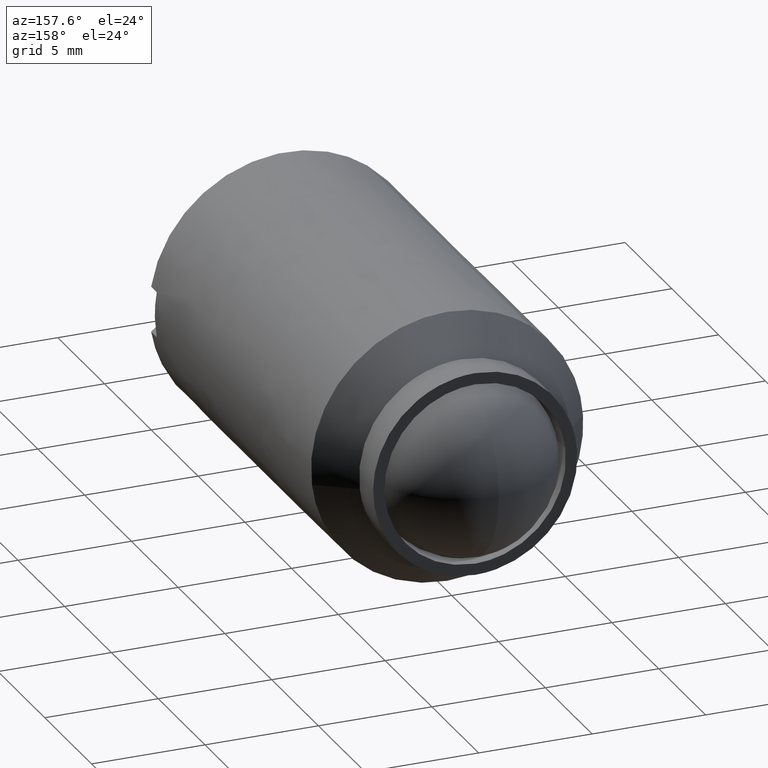
[diagram: clean part render]
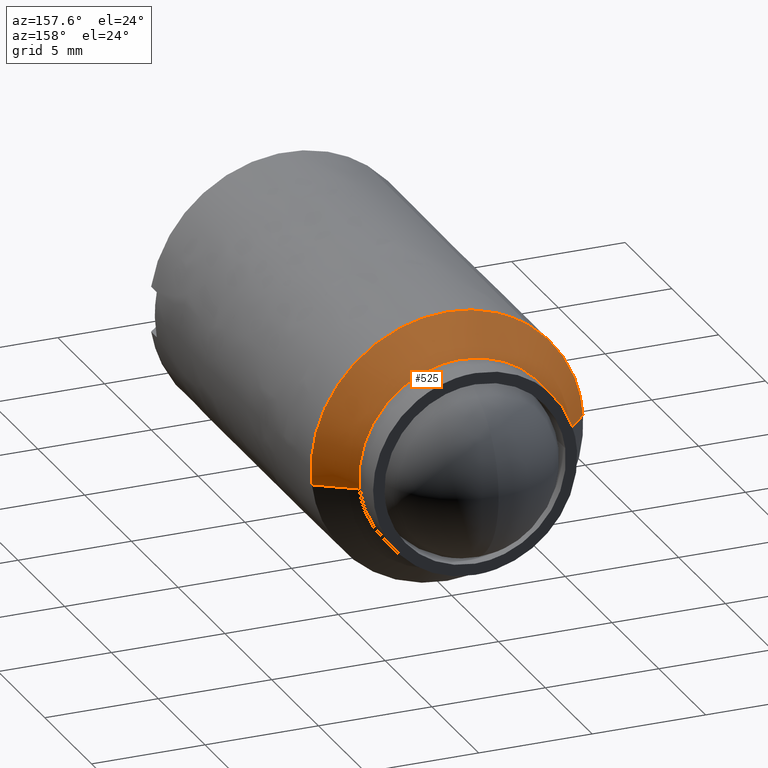
[diagram: same view with one face highlighted and labeled with its STEP entity id]
A machine part, auxiliary view. The second image highlights one B-rep face of the part: STEP entity #525.
In plain terms, the highlighted face is a freeform B-spline surface patch.
Its self-contained STEP definition (entity closure, byte-faithful):
#256=CARTESIAN_POINT('',(1.582278602989913,-3.999999999999957,4.212646961533132));
#257=VERTEX_POINT('',#256);
#258=CARTESIAN_POINT('',(0.0,-4.0,4.499999999999998));
#259=VERTEX_POINT('',#258);
#260=CARTESIAN_POINT('',(1.582278602989913,-3.999999999999957,4.212646961533133));
#261=CARTESIAN_POINT('',(0.817231978397782,-4.0,4.499999999999997));
#262=CARTESIAN_POINT('',(0.0,-4.0,4.499999999999998));
#270=(BOUNDED_CURVE()B_SPLINE_CURVE(2,(#260,#261,#262),.UNSPECIFIED.,.F.,.U.)B_SPLINE_CURVE_WITH_KNOTS((3,3),(0.440284256452175,0.500000000000000),.UNSPECIFIED.)CURVE()GEOMETRIC_REPRESENTATION_ITEM()RATIONAL_B_SPLINE_CURVE((0.893499659332722,0.930038654633755,1.0))REPRESENTATION_ITEM(''));
#271=EDGE_CURVE('',#257,#259,#270,.T.);
#310=CARTESIAN_POINT('',(-4.491606592899792,-4.000000000005571,0.274718427926606));
#311=VERTEX_POINT('',#310);
#317=CARTESIAN_POINT('',(0.0,-4.0,4.499999999999998));
#318=CARTESIAN_POINT('',(-4.233177301001646,-4.000000000000001,4.499999999999999));
#319=CARTESIAN_POINT('',(-4.491606592899792,-4.000000000005571,0.274718427926606));
#327=(BOUNDED_CURVE()B_SPLINE_CURVE(2,(#317,#318,#319),.UNSPECIFIED.,.F.,.U.)B_SPLINE_CURVE_WITH_KNOTS((3,3),(0.500000000000000,0.739332962238958),.UNSPECIFIED.)CURVE()GEOMETRIC_REPRESENTATION_ITEM()RATIONAL_B_SPLINE_CURVE((1.0,0.719603993286692,0.976072041666751))REPRESENTATION_ITEM(''));
#328=EDGE_CURVE('',#259,#311,#327,.T.);
#355=CARTESIAN_POINT('',(4.468542868636527,-4.000000000000478,-0.531154055959211));
#356=VERTEX_POINT('',#355);
#357=CARTESIAN_POINT('',(4.468542868636527,-4.000000000000478,-0.531154055959211));
#358=CARTESIAN_POINT('',(4.499999999999999,-4.0,-0.266508538437376));
#359=CARTESIAN_POINT('',(4.500000000000000,-4.0,-1.591988E-015));
#360=CARTESIAN_POINT('',(4.500000000000000,-4.0,3.116744983957551));
#361=CARTESIAN_POINT('',(1.582278602989913,-3.999999999999957,4.212646961533133));
#369=(BOUNDED_CURVE()B_SPLINE_CURVE(2,(#357,#358,#359,#360,#361),.UNSPECIFIED.,.F.,.U.)B_SPLINE_CURVE_WITH_KNOTS((3,2,3),(0.229562473515361,0.250000000000000,0.440284256452175),.UNSPECIFIED.)CURVE()GEOMETRIC_REPRESENTATION_ITEM()RATIONAL_B_SPLINE_CURVE((0.956026754187331,0.976055948333316,1.0,0.777068126552792,0.893499659332722))REPRESENTATION_ITEM(''));
#370=EDGE_CURVE('',#356,#257,#369,.T.);
#439=CARTESIAN_POINT('',(4.431305011397859,-3.962500000000000,-0.526727772155786));
#440=CARTESIAN_POINT('',(4.446379733939400,-3.962500000000000,-0.399905726546977));
#441=CARTESIAN_POINT('',(4.454176537957578,-3.962500000000000,-0.272429107674301));
#442=CARTESIAN_POINT('',(4.726605645631879,-3.962500000000000,4.181747430283277));
#443=CARTESIAN_POINT('',(0.272429107674299,-3.962500000000000,4.454176537957577));
#444=CARTESIAN_POINT('',(-4.181747430283279,-3.962500000000000,4.726605645631875));
#445=CARTESIAN_POINT('',(-4.454176537957578,-3.962500000000000,0.272429107674298));
#446=CARTESIAN_POINT('',(5.996225961851604,-5.538437500000001,-0.712742348835172));
#447=CARTESIAN_POINT('',(6.016624341660442,-5.538437500000001,-0.541132937959890));
#448=CARTESIAN_POINT('',(6.027174596845543,-5.538437500000001,-0.368637790447515));
#449=CARTESIAN_POINT('',(6.395812387293058,-5.538437500000001,5.658536806398028));
#450=CARTESIAN_POINT('',(0.368637790447513,-5.538437500000001,6.027174596845542));
#451=CARTESIAN_POINT('',(-5.658536806398030,-5.538437500000001,6.395812387293055));
#452=CARTESIAN_POINT('',(-6.027174596845543,-5.538437500000001,0.368637790447511));
#460=(BOUNDED_SURFACE()B_SPLINE_SURFACE(2,1,((#439,#446),(#440,#447),(#441,#448),(#442,#449),(#443,#450),(#444,#451),(#445,#452)),.UNSPECIFIED.,.F.,.F.,.U.)B_SPLINE_SURFACE_WITH_KNOTS((3,2,2,3),(2,2),(0.0,0.400192433286767,10.405003265455910,20.409814097625059),(0.0,2.228712185952353),.UNSPECIFIED.)GEOMETRIC_REPRESENTATION_ITEM()RATIONAL_B_SPLINE_SURFACE(((0.977505800795127,0.977505800795127),(0.988284271247462,0.988284271247462),(1.0,1.0),(0.707106781186548,0.707106781186548),(1.0,1.0),(0.707106781186548,0.707106781186548),(1.0,1.0)))REPRESENTATION_ITEM('')SURFACE());
#461=ORIENTED_EDGE('',*,*,#370,.T.);
#462=ORIENTED_EDGE('',*,*,#271,.T.);
#463=ORIENTED_EDGE('',*,*,#328,.T.);
#464=CARTESIAN_POINT('',(-5.988808790533744,-5.500000000004731,0.366291237245100));
#465=VERTEX_POINT('',#464);
#466=CARTESIAN_POINT('',(-4.491606592899792,-4.000000000005571,0.274718427926606));
#467=CARTESIAN_POINT('',(-5.988808790533744,-5.500000000004731,0.366291237245100));
#468=QUASI_UNIFORM_CURVE('',1,(#466,#467),.UNSPECIFIED.,.F.,.U.);
#469=EDGE_CURVE('',#311,#465,#468,.T.);
#470=ORIENTED_EDGE('',*,*,#469,.T.);
#471=CARTESIAN_POINT('',(-3.618751996580211,-5.500000000000002,4.785878601390381));
#472=VERTEX_POINT('',#471);
#473=CARTESIAN_POINT('',(-3.618751996580210,-5.500000000000002,4.785878601390381));
#474=CARTESIAN_POINT('',(-5.820310628495616,-5.500000000000001,3.121211833940571));
#475=CARTESIAN_POINT('',(-5.988808790533744,-5.500000000004731,0.366291237245100));
#483=(BOUNDED_CURVE()B_SPLINE_CURVE(2,(#473,#474,#475),.UNSPECIFIED.,.F.,.U.)B_SPLINE_CURVE_WITH_KNOTS((3,3),(0.604146613491099,0.739332962239912),.UNSPECIFIED.)CURVE()GEOMETRIC_REPRESENTATION_ITEM()RATIONAL_B_SPLINE_CURVE((0.857629186986864,0.831207002155740,0.976072041668794))REPRESENTATION_ITEM(''));
#484=EDGE_CURVE('',#472,#465,#483,.T.);
#485=ORIENTED_EDGE('',*,*,#484,.F.);
#486=CARTESIAN_POINT('',(0.0,-5.500000000000000,5.999999999999998));
#487=VERTEX_POINT('',#486);
#488=CARTESIAN_POINT('',(0.0,-5.500000000000000,5.999999999999998));
#489=CARTESIAN_POINT('',(-2.013049583600106,-5.500000000000000,6.0));
#490=CARTESIAN_POINT('',(-3.618751996580212,-5.500000000000002,4.785878601390381));
#498=(BOUNDED_CURVE()B_SPLINE_CURVE(2,(#488,#489,#490),.UNSPECIFIED.,.F.,.U.)B_SPLINE_CURVE_WITH_KNOTS((3,3),(0.500000000000000,0.604146613491098),.UNSPECIFIED.)CURVE()GEOMETRIC_REPRESENTATION_ITEM()RATIONAL_B_SPLINE_CURVE((1.0,0.877984652584287,0.857629186986864))REPRESENTATION_ITEM(''));
#499=EDGE_CURVE('',#487,#472,#498,.T.);
#500=ORIENTED_EDGE('',*,*,#499,.F.);
#501=CARTESIAN_POINT('',(5.958057158182147,-5.500000000002313,-0.708205407958896));
#502=VERTEX_POINT('',#501);
#503=CARTESIAN_POINT('',(5.958057158182148,-5.500000000002313,-0.708205407958896));
#504=CARTESIAN_POINT('',(6.0,-5.500000000000001,-0.355344717929724));
#505=CARTESIAN_POINT('',(6.0,-5.500000000000000,-1.591988E-015));
#506=CARTESIAN_POINT('',(6.0,-5.500000000000001,5.999999999999998));
#507=CARTESIAN_POINT('',(0.0,-5.500000000000000,5.999999999999998));
#515=(BOUNDED_CURVE()B_SPLINE_CURVE(2,(#503,#504,#505,#506,#507),.UNSPECIFIED.,.F.,.U.)B_SPLINE_CURVE_WITH_KNOTS((3,2,3),(0.229562473514619,0.250000000000000,0.500000000000000),.UNSPECIFIED.)CURVE()GEOMETRIC_REPRESENTATION_ITEM()RATIONAL_B_SPLINE_CURVE((0.956026754185876,0.976055948332446,1.0,0.707106781186548,1.0))REPRESENTATION_ITEM(''));
#516=EDGE_CURVE('',#502,#487,#515,.T.);
#517=ORIENTED_EDGE('',*,*,#516,.F.);
#518=CARTESIAN_POINT('',(4.468542868636527,-4.000000000000478,-0.531154055959211));
#519=CARTESIAN_POINT('',(5.958057158182147,-5.500000000002313,-0.708205407958896));
#520=QUASI_UNIFORM_CURVE('',1,(#518,#519),.UNSPECIFIED.,.F.,.U.);
#521=EDGE_CURVE('',#356,#502,#520,.T.);
#522=ORIENTED_EDGE('',*,*,#521,.F.);
#523=EDGE_LOOP('',(#461,#462,#463,#470,#485,#500,#517,#522));
#524=FACE_OUTER_BOUND('',#523,.T.);
#525=ADVANCED_FACE('',(#524),#460,.T.);